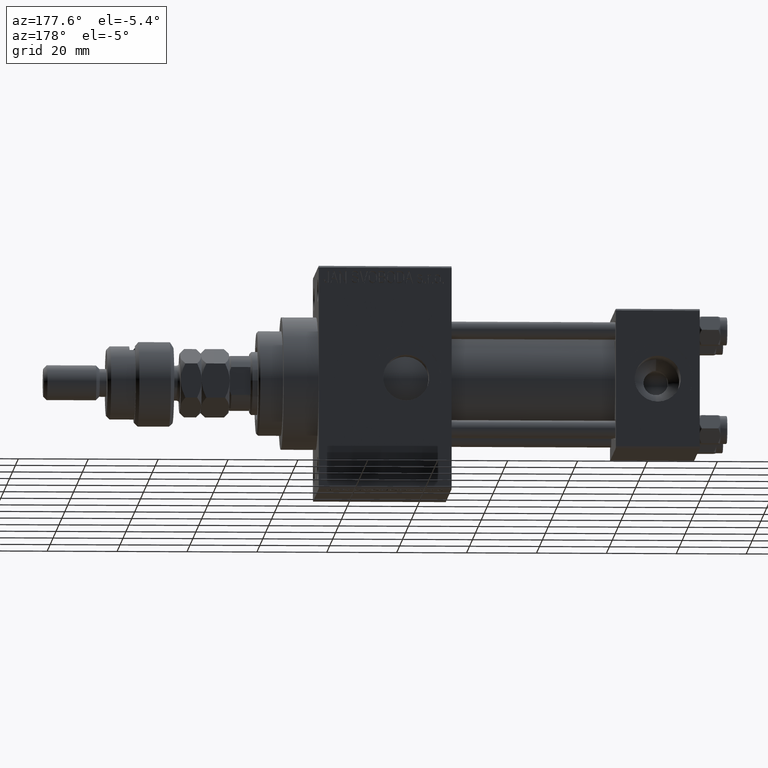
[diagram: clean part render]
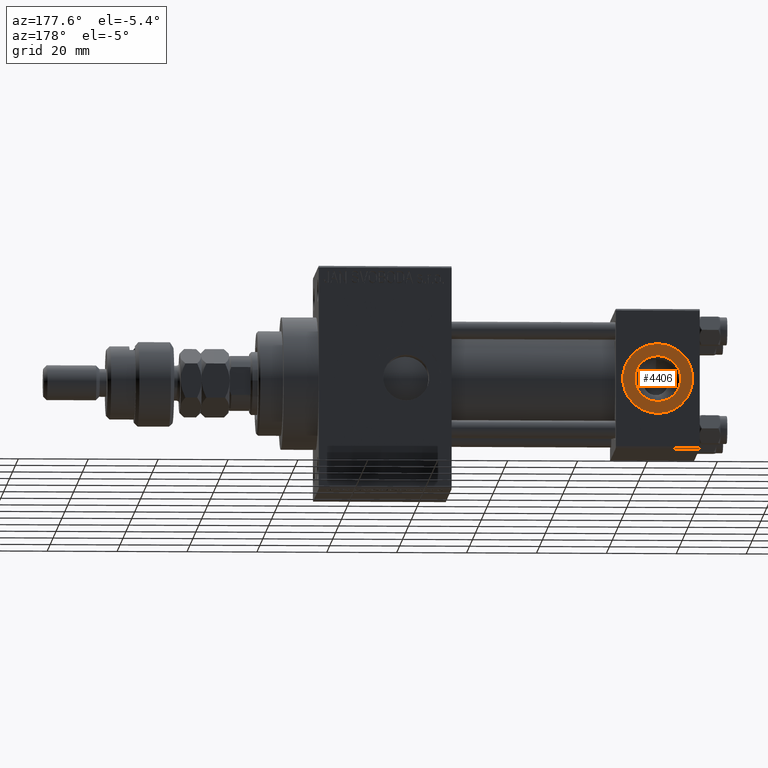
[diagram: same view with one face highlighted and labeled with its STEP entity id]
A machine part, auxiliary view. The second image highlights one B-rep face of the part: STEP entity #4406.
In plain terms, the highlighted planar face has unit normal (0, 1, 0).
Its self-contained STEP definition (entity closure, byte-faithful):
#781 = DIRECTION ( 'NONE',  ( 0.000000000000000000, 1.000000000000000000, 0.000000000000000000 ) ) ;
#2629 = CARTESIAN_POINT ( 'NONE',  ( 12.00000000000000000, 19.80000000000000071, 0.000000000000000000 ) ) ;
#3087 = AXIS2_PLACEMENT_3D ( 'NONE', #15721, #7649, #39146 ) ;
#4406 = ADVANCED_FACE ( 'NONE', ( #19263, #45715 ), #11179, .T. ) ;
#7649 = DIRECTION ( 'NONE',  ( 0.000000000000000000, 1.000000000000000000, 0.000000000000000000 ) ) ;
#8259 = CARTESIAN_POINT ( 'NONE',  ( 12.00000000000000000, 19.80000000000000071, 10.00000000000000000 ) ) ;
#9133 = CARTESIAN_POINT ( 'NONE',  ( 12.00000000000000000, 19.80000000000000071, 0.000000000000000000 ) ) ;
#9146 = DIRECTION ( 'NONE',  ( 0.000000000000000000, 0.000000000000000000, 1.000000000000000000 ) ) ;
#9193 = EDGE_CURVE ( 'NONE', #23309, #33910, #47414, .T. ) ;
#10976 = ORIENTED_EDGE ( 'NONE', *, *, #18941, .T. ) ;
#11179 = PLANE ( 'NONE',  #3087 ) ;
#14427 = AXIS2_PLACEMENT_3D ( 'NONE', #2629, #44732, #48270 ) ;
#15721 = CARTESIAN_POINT ( 'NONE',  ( 12.00000000000000000, 19.80000000000000071, 0.000000000000000000 ) ) ;
#16497 = CIRCLE ( 'NONE', #46242, 6.579999999999998295 ) ;
#16953 = CARTESIAN_POINT ( 'NONE',  ( 12.00000000000000000, 19.80000000000000071, 6.579999999999998295 ) ) ;
#18941 = EDGE_CURVE ( 'NONE', #33910, #23309, #37897, .T. ) ;
#19263 = FACE_BOUND ( 'NONE', #23426, .T. ) ;
#22705 = CIRCLE ( 'NONE', #24299, 6.579999999999998295 ) ;
#22768 = VERTEX_POINT ( 'NONE', #16953 ) ;
#23309 = VERTEX_POINT ( 'NONE', #8259 ) ;
#23426 = EDGE_LOOP ( 'NONE', ( #40541, #38666 ) ) ;
#24299 = AXIS2_PLACEMENT_3D ( 'NONE', #46666, #781, #38602 ) ;
#25173 = ORIENTED_EDGE ( 'NONE', *, *, #9193, .T. ) ;
#27016 = EDGE_CURVE ( 'NONE', #22768, #36899, #16497, .T. ) ;
#30596 = CARTESIAN_POINT ( 'NONE',  ( 12.00000000000000000, 19.80000000000000071, -6.579999999999998295 ) ) ;
#31088 = DIRECTION ( 'NONE',  ( 0.000000000000000000, 1.000000000000000000, 0.000000000000000000 ) ) ;
#33614 = CARTESIAN_POINT ( 'NONE',  ( 12.00000000000000178, 19.80000000000000071, -10.00000000000000000 ) ) ;
#33910 = VERTEX_POINT ( 'NONE', #33614 ) ;
#36103 = DIRECTION ( 'NONE',  ( 0.000000000000000000, 0.000000000000000000, 1.000000000000000000 ) ) ;
#36899 = VERTEX_POINT ( 'NONE', #30596 ) ;
#37897 = CIRCLE ( 'NONE', #38727, 10.00000000000000000 ) ;
#38602 = DIRECTION ( 'NONE',  ( 0.000000000000000000, 0.000000000000000000, 1.000000000000000000 ) ) ;
#38666 = ORIENTED_EDGE ( 'NONE', *, *, #39118, .F. ) ;
#38727 = AXIS2_PLACEMENT_3D ( 'NONE', #9133, #39891, #36103 ) ;
#39118 = EDGE_CURVE ( 'NONE', #36899, #22768, #22705, .T. ) ;
#39146 = DIRECTION ( 'NONE',  ( 0.000000000000000000, -0.000000000000000000, 1.000000000000000000 ) ) ;
#39891 = DIRECTION ( 'NONE',  ( 0.000000000000000000, 1.000000000000000000, 0.000000000000000000 ) ) ;
#40541 = ORIENTED_EDGE ( 'NONE', *, *, #27016, .F. ) ;
#41385 = EDGE_LOOP ( 'NONE', ( #25173, #10976 ) ) ;
#44732 = DIRECTION ( 'NONE',  ( 0.000000000000000000, 1.000000000000000000, 0.000000000000000000 ) ) ;
#45715 = FACE_OUTER_BOUND ( 'NONE', #41385, .T. ) ;
#46242 = AXIS2_PLACEMENT_3D ( 'NONE', #46703, #31088, #9146 ) ;
#46666 = CARTESIAN_POINT ( 'NONE',  ( 12.00000000000000000, 19.80000000000000071, 0.000000000000000000 ) ) ;
#46703 = CARTESIAN_POINT ( 'NONE',  ( 12.00000000000000000, 19.80000000000000071, 0.000000000000000000 ) ) ;
#47414 = CIRCLE ( 'NONE', #14427, 10.00000000000000000 ) ;
#48270 = DIRECTION ( 'NONE',  ( 0.000000000000000000, 0.000000000000000000, 1.000000000000000000 ) ) ;